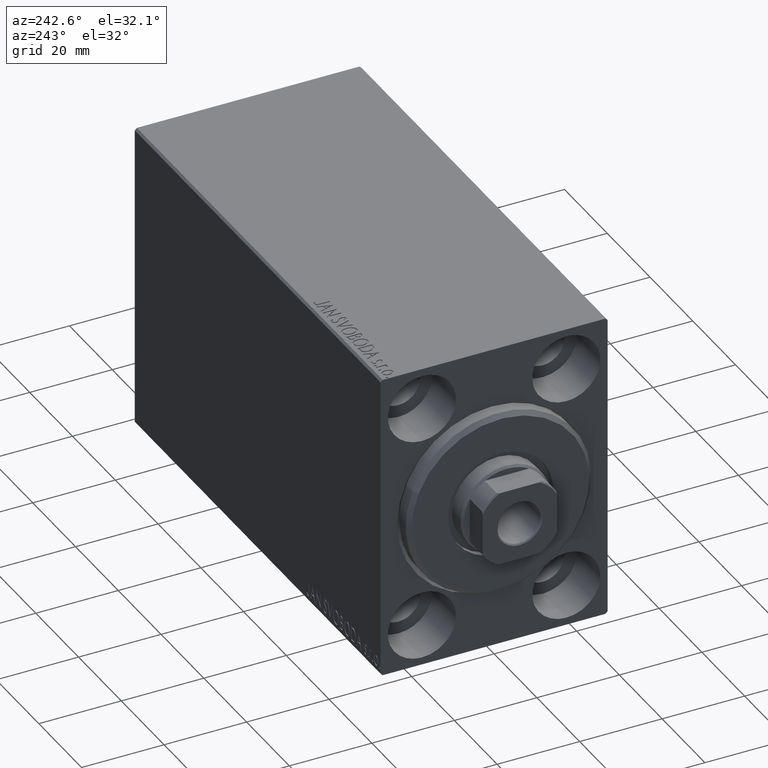
[diagram: clean part render]
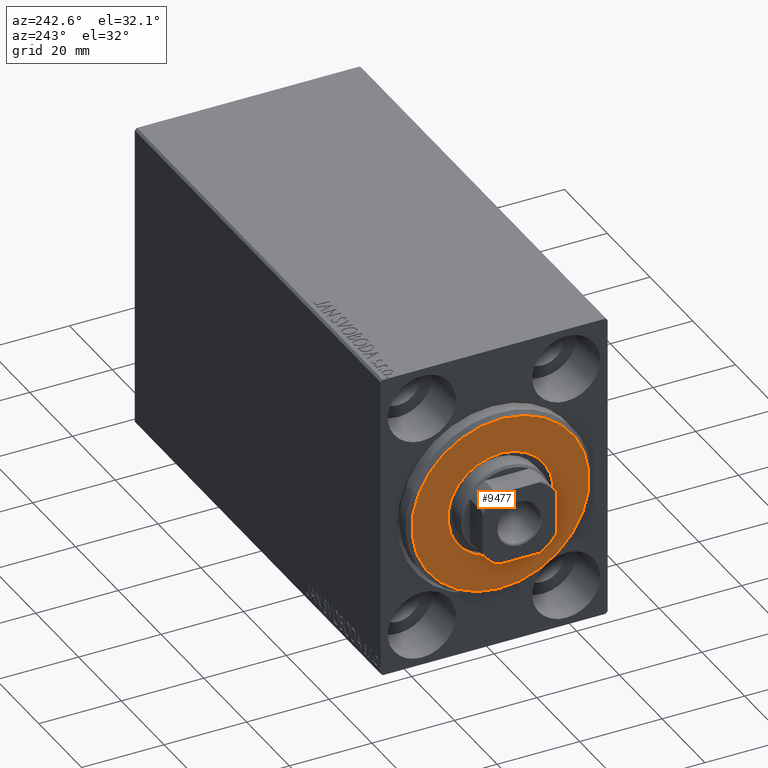
[diagram: same view with one face highlighted and labeled with its STEP entity id]
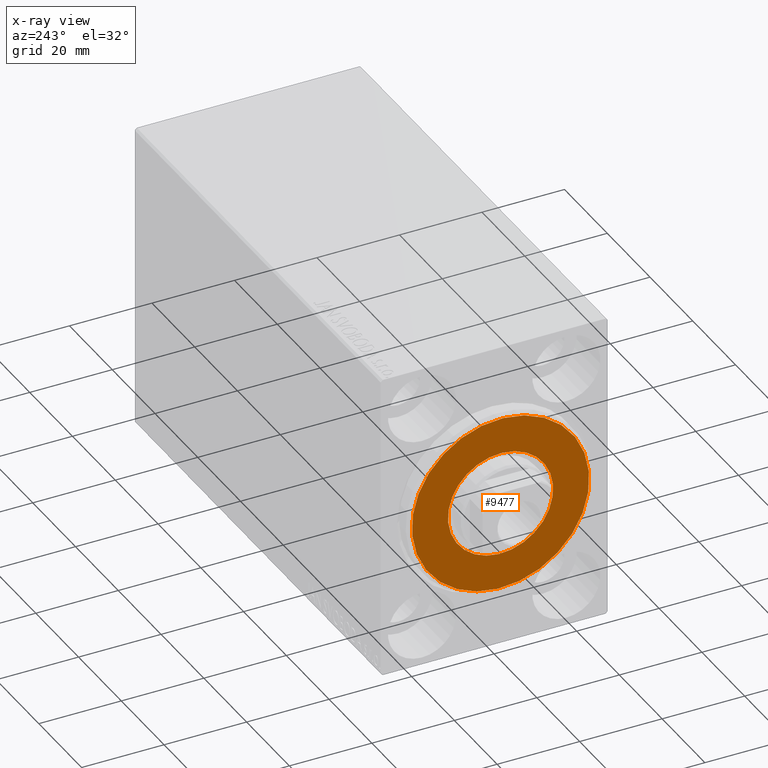
[diagram: x-ray of the same camera — body ghosted, the highlighted face saturated]
A machine part, auxiliary view. The second image highlights one B-rep face of the part: STEP entity #9477.
The next image is the same camera in x-ray: the body ghosted, the highlighted face saturated — about 0% of this face is hidden behind the body in this view.
In plain terms, the highlighted planar face has unit normal (-1, 0, 0).
Its self-contained STEP definition (entity closure, byte-faithful):
#1516 = FACE_OUTER_BOUND ( 'NONE', #11129, .T. ) ;
#1738 = DIRECTION ( 'NONE',  ( 0.000000000000000000, 0.000000000000000000, -1.000000000000000000 ) ) ;
#1925 = DIRECTION ( 'NONE',  ( 0.000000000000000000, 0.000000000000000000, -1.000000000000000000 ) ) ;
#3736 = AXIS2_PLACEMENT_3D ( 'NONE', #29813, #17043, #6914 ) ;
#5856 = CIRCLE ( 'NONE', #3736, 21.50000000000000355 ) ;
#6914 = DIRECTION ( 'NONE',  ( 0.000000000000000000, 0.000000000000000000, -1.000000000000000000 ) ) ;
#7957 = CIRCLE ( 'NONE', #16370, 21.50000000000000355 ) ;
#8485 = VERTEX_POINT ( 'NONE', #27494 ) ;
#9477 = ADVANCED_FACE ( 'NONE', ( #1516, #14964 ), #28378, .T. ) ;
#10532 = ORIENTED_EDGE ( 'NONE', *, *, #22981, .T. ) ;
#11129 = EDGE_LOOP ( 'NONE', ( #10532, #19396 ) ) ;
#11882 = CARTESIAN_POINT ( 'NONE',  ( 3.000000000000000000, 0.000000000000000000, 0.000000000000000000 ) ) ;
#12256 = EDGE_LOOP ( 'NONE', ( #36245, #18687 ) ) ;
#14964 = FACE_BOUND ( 'NONE', #12256, .T. ) ;
#16141 = VERTEX_POINT ( 'NONE', #20100 ) ;
#16370 = AXIS2_PLACEMENT_3D ( 'NONE', #11882, #19134, #1738 ) ;
#16617 = EDGE_CURVE ( 'NONE', #8485, #38691, #30260, .T. ) ;
#17043 = DIRECTION ( 'NONE',  ( 1.000000000000000000, -0.000000000000000000, 0.000000000000000000 ) ) ;
#17098 = CIRCLE ( 'NONE', #41717, 12.75000000000000000 ) ;
#17511 = DIRECTION ( 'NONE',  ( -1.000000000000000000, 0.000000000000000000, -0.000000000000000000 ) ) ;
#17630 = AXIS2_PLACEMENT_3D ( 'NONE', #34453, #17511, #34891 ) ;
#17823 = CARTESIAN_POINT ( 'NONE',  ( 3.000000000000000000, 0.000000000000000000, 0.000000000000000000 ) ) ;
#18687 = ORIENTED_EDGE ( 'NONE', *, *, #16617, .T. ) ;
#19134 = DIRECTION ( 'NONE',  ( 1.000000000000000000, -0.000000000000000000, 0.000000000000000000 ) ) ;
#19396 = ORIENTED_EDGE ( 'NONE', *, *, #24390, .T. ) ;
#20100 = CARTESIAN_POINT ( 'NONE',  ( 3.000000000000000000, 0.000000000000000000, 21.50000000000000355 ) ) ;
#20916 = DIRECTION ( 'NONE',  ( 0.000000000000000000, 0.000000000000000000, -1.000000000000000000 ) ) ;
#22981 = EDGE_CURVE ( 'NONE', #16141, #41723, #7957, .T. ) ;
#24390 = EDGE_CURVE ( 'NONE', #41723, #16141, #5856, .T. ) ;
#25066 = CARTESIAN_POINT ( 'NONE',  ( 3.000000000000000000, 0.000000000000000000, 0.000000000000000000 ) ) ;
#25073 = EDGE_CURVE ( 'NONE', #38691, #8485, #17098, .T. ) ;
#27494 = CARTESIAN_POINT ( 'NONE',  ( 3.000000000000000000, 1.561424668912874914E-15, -12.75000000000000000 ) ) ;
#28378 = PLANE ( 'NONE',  #39585 ) ;
#29813 = CARTESIAN_POINT ( 'NONE',  ( 3.000000000000000000, 0.000000000000000000, 0.000000000000000000 ) ) ;
#30260 = CIRCLE ( 'NONE', #17630, 12.75000000000000000 ) ;
#33737 = CARTESIAN_POINT ( 'NONE',  ( 3.000000000000000000, 0.000000000000000000, 12.75000000000000000 ) ) ;
#34453 = CARTESIAN_POINT ( 'NONE',  ( 3.000000000000000000, 0.000000000000000000, 0.000000000000000000 ) ) ;
#34891 = DIRECTION ( 'NONE',  ( 0.000000000000000000, 0.000000000000000000, -1.000000000000000000 ) ) ;
#36245 = ORIENTED_EDGE ( 'NONE', *, *, #25073, .T. ) ;
#37239 = CARTESIAN_POINT ( 'NONE',  ( 3.000000000000000000, 2.694222958124177598E-15, -21.50000000000000355 ) ) ;
#38494 = DIRECTION ( 'NONE',  ( -1.000000000000000000, 0.000000000000000000, -0.000000000000000000 ) ) ;
#38691 = VERTEX_POINT ( 'NONE', #33737 ) ;
#39585 = AXIS2_PLACEMENT_3D ( 'NONE', #17823, #41826, #20916 ) ;
#41717 = AXIS2_PLACEMENT_3D ( 'NONE', #25066, #38494, #1925 ) ;
#41723 = VERTEX_POINT ( 'NONE', #37239 ) ;
#41826 = DIRECTION ( 'NONE',  ( 1.000000000000000000, -0.000000000000000000, 0.000000000000000000 ) ) ;